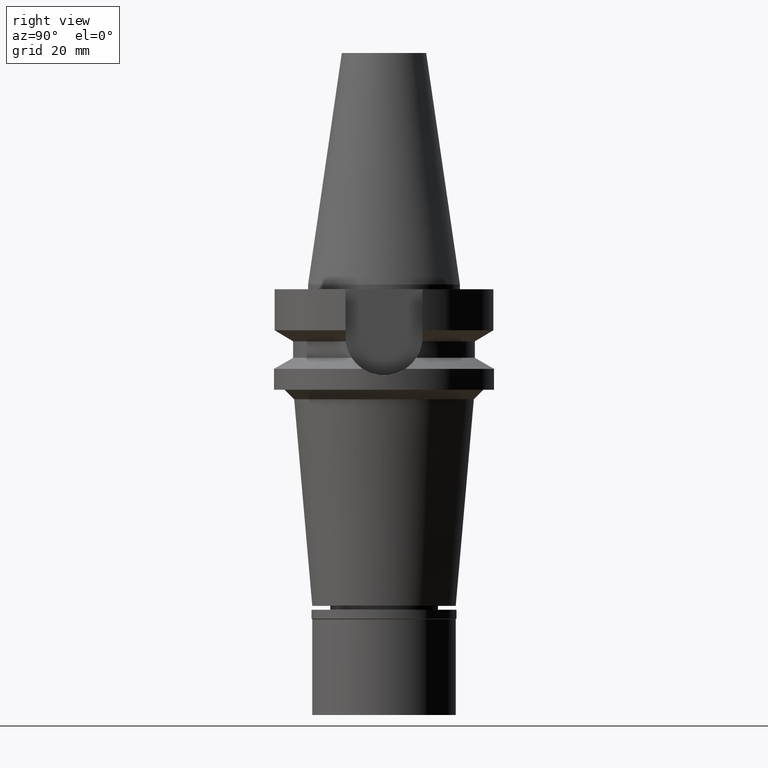
[diagram: clean part render]
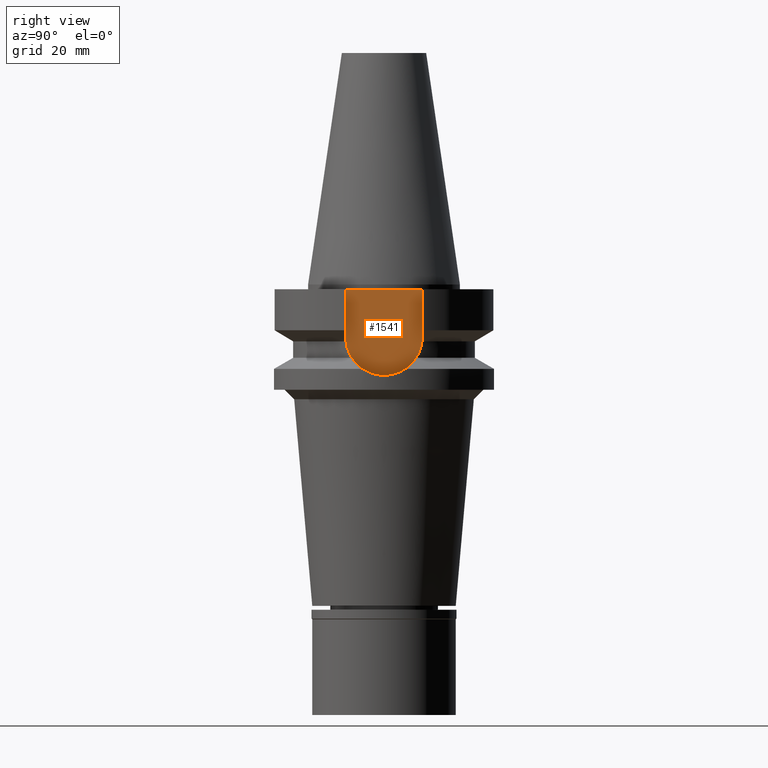
[diagram: same view with one face highlighted and labeled with its STEP entity id]
A machine part, right view. The second image highlights one B-rep face of the part: STEP entity #1541.
In plain terms, the highlighted planar face has unit normal (1, 0, 0).
Its self-contained STEP definition (entity closure, byte-faithful):
#101 = EDGE_CURVE ( 'NONE', #923, #255, #2686, .T. ) ;
#154 = VERTEX_POINT ( 'NONE', #368 ) ;
#218 = EDGE_CURVE ( 'NONE', #2838, #255, #2495, .T. ) ;
#240 = VECTOR ( 'NONE', #1308, 1000.000000000000000 ) ;
#255 = VERTEX_POINT ( 'NONE', #1357 ) ;
#266 = DIRECTION ( 'NONE',  ( -1.000000000000000000, 0.0000000000000000000, 0.0000000000000000000 ) ) ;
#279 = PLANE ( 'NONE',  #2134 ) ;
#288 = CARTESIAN_POINT ( 'NONE',  ( 16.29999999999999716, 8.050000000000000711, -1.000000000000000000 ) ) ;
#368 = CARTESIAN_POINT ( 'NONE',  ( 16.29999999999999716, 8.050000000000000711, -10.94999999999999929 ) ) ;
#390 = ORIENTED_EDGE ( 'NONE', *, *, #218, .T. ) ;
#503 = ORIENTED_EDGE ( 'NONE', *, *, #1464, .F. ) ;
#541 = LINE ( 'NONE', #288, #2065 ) ;
#686 = EDGE_CURVE ( 'NONE', #2838, #154, #541, .T. ) ;
#765 = DIRECTION ( 'NONE',  ( 0.0000000000000000000, 0.0000000000000000000, -1.000000000000000000 ) ) ;
#806 = CARTESIAN_POINT ( 'NONE',  ( 16.29999999999999716, 8.050000000000000711, -1.000000000000000000 ) ) ;
#923 = VERTEX_POINT ( 'NONE', #1603 ) ;
#1117 = DIRECTION ( 'NONE',  ( 0.0000000000000000000, 0.0000000000000000000, 1.000000000000000000 ) ) ;
#1172 = DIRECTION ( 'NONE',  ( 1.000000000000000000, 0.0000000000000000000, 0.0000000000000000000 ) ) ;
#1205 = DIRECTION ( 'NONE',  ( 0.0000000000000000000, 1.000000000000000000, 0.0000000000000000000 ) ) ;
#1220 = CARTESIAN_POINT ( 'NONE',  ( 16.29999999999999716, 0.0000000000000000000, 0.0000000000000000000 ) ) ;
#1236 = EDGE_LOOP ( 'NONE', ( #1874, #503, #2350, #390 ) ) ;
#1308 = DIRECTION ( 'NONE',  ( 0.0000000000000000000, -1.000000000000000000, 0.0000000000000000000 ) ) ;
#1357 = CARTESIAN_POINT ( 'NONE',  ( 16.29999999999999716, -8.050000000000000711, -1.000000000000000000 ) ) ;
#1422 = CARTESIAN_POINT ( 'NONE',  ( 16.29999999999999716, 0.0000000000000000000, -10.94999999999999929 ) ) ;
#1464 = EDGE_CURVE ( 'NONE', #154, #923, #1481, .T. ) ;
#1481 = CIRCLE ( 'NONE', #2270, 8.050000000000000711 ) ;
#1541 = ADVANCED_FACE ( 'NONE', ( #1672 ), #279, .T. ) ;
#1603 = CARTESIAN_POINT ( 'NONE',  ( 16.29999999999999716, -8.050000000000000711, -10.94999999999999929 ) ) ;
#1672 = FACE_OUTER_BOUND ( 'NONE', #1236, .T. ) ;
#1857 = VECTOR ( 'NONE', #1117, 1000.000000000000000 ) ;
#1874 = ORIENTED_EDGE ( 'NONE', *, *, #101, .F. ) ;
#2065 = VECTOR ( 'NONE', #765, 1000.000000000000000 ) ;
#2134 = AXIS2_PLACEMENT_3D ( 'NONE', #1220, #1172, #2848 ) ;
#2270 = AXIS2_PLACEMENT_3D ( 'NONE', #1422, #266, #1205 ) ;
#2350 = ORIENTED_EDGE ( 'NONE', *, *, #686, .F. ) ;
#2450 = CARTESIAN_POINT ( 'NONE',  ( 16.29999999999999716, -8.050000000000000711, -10.94999999999999929 ) ) ;
#2495 = LINE ( 'NONE', #2966, #240 ) ;
#2686 = LINE ( 'NONE', #2450, #1857 ) ;
#2838 = VERTEX_POINT ( 'NONE', #806 ) ;
#2848 = DIRECTION ( 'NONE',  ( 0.0000000000000000000, 1.000000000000000000, 0.0000000000000000000 ) ) ;
#2966 = CARTESIAN_POINT ( 'NONE',  ( 16.29999999999999716, 8.050000000000000711, -1.000000000000000000 ) ) ;